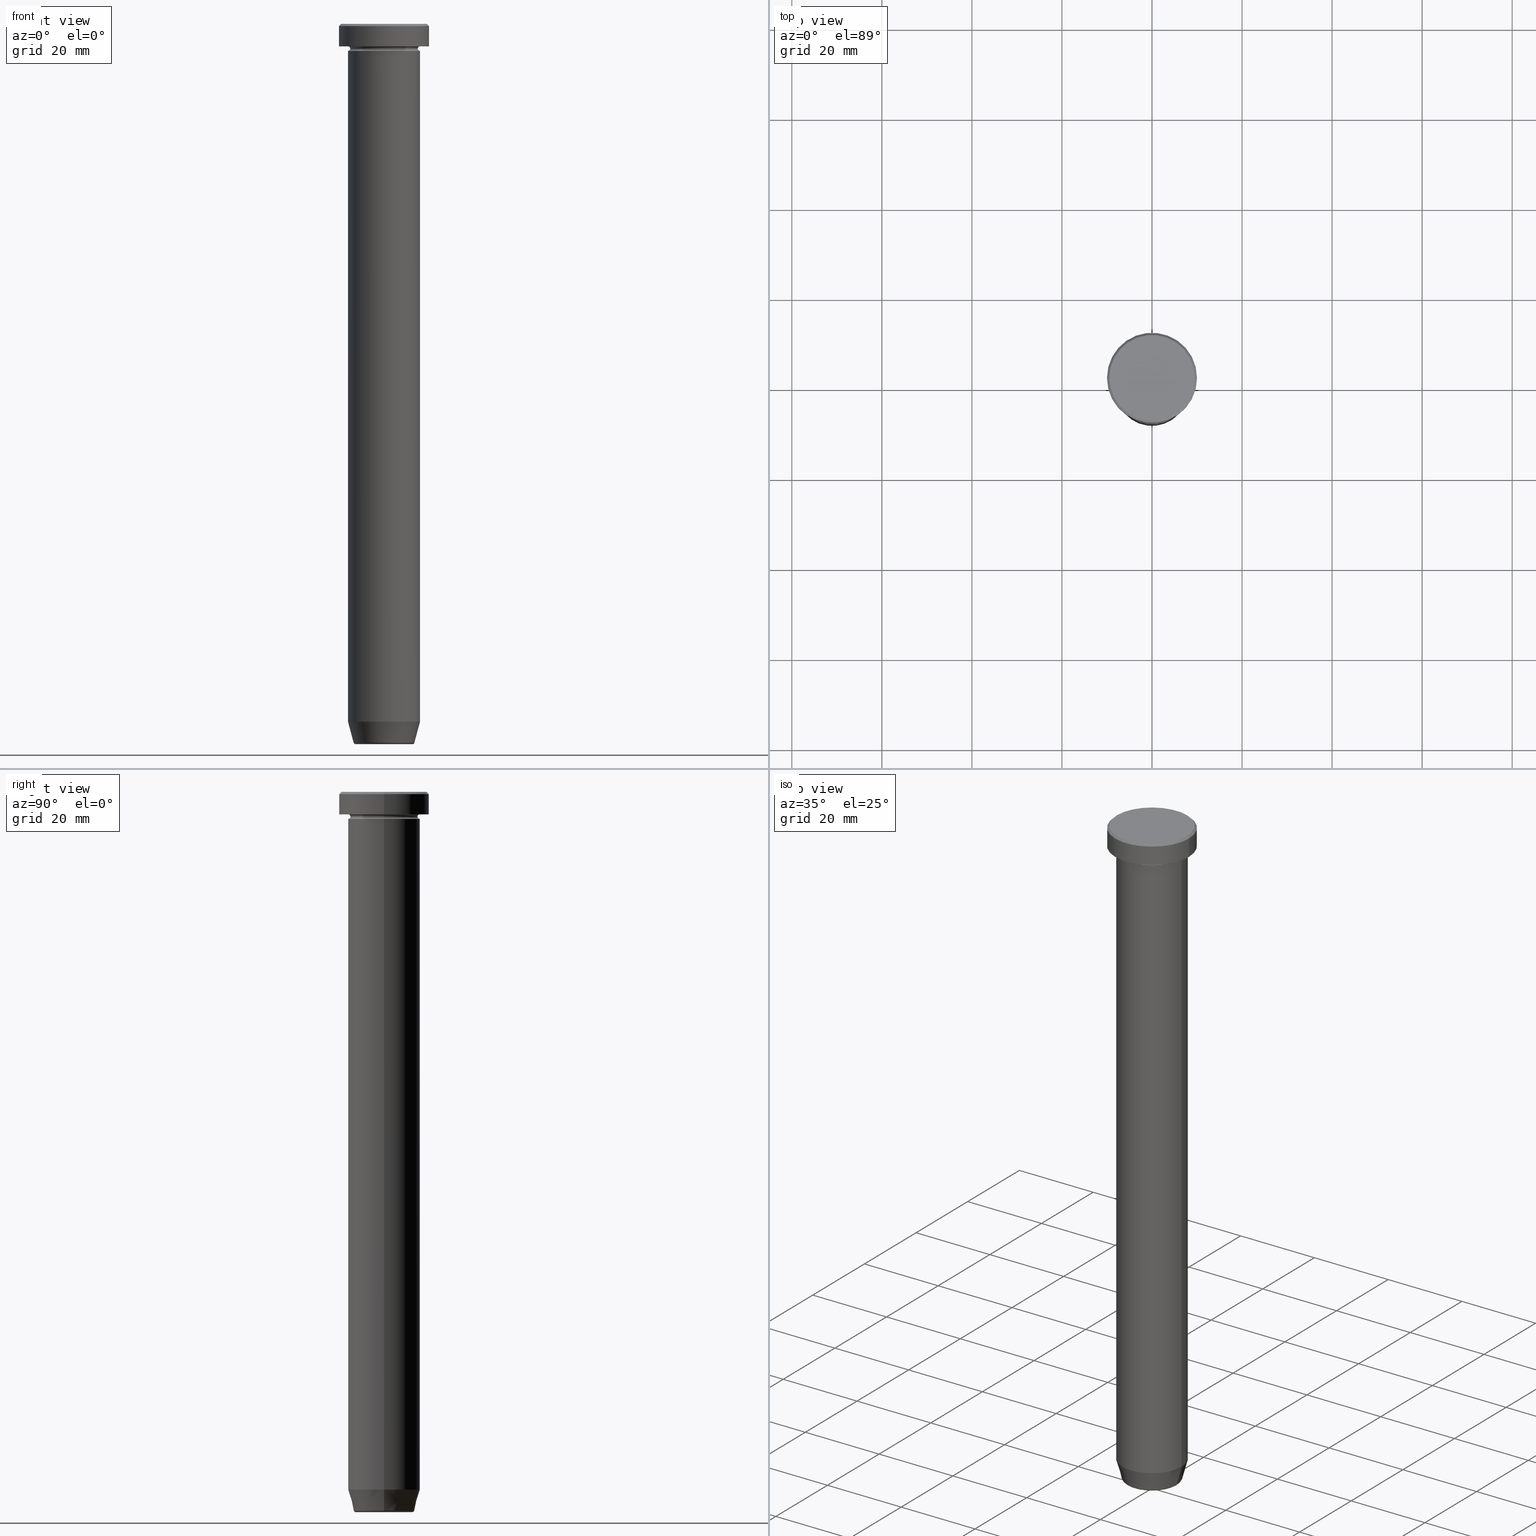
[diagram: canonical four-view strip — front | top / right | iso, engineering-drawing reading convention]
A machine part, canonical four-view strip (front | top / right | iso — engineering-drawing reading convention). The complete STEP part file that produces these views, byte-faithful:
ISO-10303-21;
HEADER;
FILE_DESCRIPTION (( 'STEP AP203' ),
    '1' );
FILE_NAME ('6c4e.STEP',
    '2024-01-02T22:04:36',
    ( '' ),
    ( '' ),
    'SwSTEP 2.0',
    'SolidWorks 2019',
    '' );
FILE_SCHEMA (( 'CONFIG_CONTROL_DESIGN' ));
ENDSEC;

DATA;
#1 = ORIENTED_EDGE ( 'NONE', *, *, #326, .T. ) ;
#2 = DIRECTION ( 'NONE',  ( 1.000000000000000000, 0.000000000000000000, 0.000000000000000000 ) ) ;
#3 = FACE_OUTER_BOUND ( 'NONE', #20, .T. ) ;
#4 = ORIENTED_EDGE ( 'NONE', *, *, #275, .F. ) ;
#5 = VECTOR ( 'NONE', #362, 1000.000000000000000 ) ;
#6 = DIRECTION ( 'NONE',  ( -0.000000000000000000, -0.000000000000000000, 1.000000000000000000 ) ) ;
#7 = AXIS2_PLACEMENT_3D ( 'NONE', #38, #594, #557 ) ;
#8 = ADVANCED_FACE ( 'NONE', ( #161 ), #121, .T. ) ;
#9 = EDGE_LOOP ( 'NONE', ( #352, #363 ) ) ;
#10 = ORIENTED_EDGE ( 'NONE', *, *, #111, .F. ) ;
#11 = DIRECTION ( 'NONE',  ( 1.000000000000000000, 0.000000000000000000, 0.000000000000000000 ) ) ;
#12 = EDGE_CURVE ( 'NONE', #385, #373, #389, .T. ) ;
#13 = DIRECTION ( 'NONE',  ( -1.000000000000000000, 0.000000000000000000, 0.000000000000000000 ) ) ;
#14 = AXIS2_PLACEMENT_3D ( 'NONE', #53, #429, #336 ) ;
#15 = AXIS2_PLACEMENT_3D ( 'NONE', #333, #295, #253 ) ;
#16 = DIRECTION ( 'NONE',  ( -0.000000000000000000, -0.000000000000000000, 1.000000000000000000 ) ) ;
#17 = ORIENTED_EDGE ( 'NONE', *, *, #464, .T. ) ;
#18 = EDGE_CURVE ( 'NONE', #200, #242, #520, .T. ) ;
#19 = CONICAL_SURFACE ( 'NONE', #349, 6.660254037844382857, 0.2617993877991499074 ) ;
#20 = EDGE_LOOP ( 'NONE', ( #374, #448 ) ) ;
#21 = VERTEX_POINT ( 'NONE', #589 ) ;
#22 = CARTESIAN_POINT ( 'NONE',  ( 8.000000000000000000, 9.797174393178825657E-16, -5.500000000000000000 ) ) ;
#23 = ORIENTED_EDGE ( 'NONE', *, *, #61, .T. ) ;
#24 = ORIENTED_EDGE ( 'NONE', *, *, #536, .T. ) ;
#25 = EDGE_LOOP ( 'NONE', ( #46, #538, #492, #403 ) ) ;
#26 = ADVANCED_FACE ( 'NONE', ( #39 ), #126, .F. ) ;
#27 = CARTESIAN_POINT ( 'NONE',  ( 8.000000000000000000, 0.000000000000000000, 0.000000000000000000 ) ) ;
#28 = COORDINATED_UNIVERSAL_TIME_OFFSET ( 1, 0, .AHEAD. ) ;
#29 = CIRCLE ( 'NONE', #558, 7.500000000000000000 ) ;
#30 = LOCAL_TIME ( 23, 4, 36.00000000000000000, #579 ) ;
#31 = FACE_OUTER_BOUND ( 'NONE', #280, .T. ) ;
#32 = PLANE ( 'NONE',  #400 ) ;
#33 = CC_DESIGN_PERSON_AND_ORGANIZATION_ASSIGNMENT ( #452, #214, ( #139 ) ) ;
#34 = DIRECTION ( 'NONE',  ( -1.000000000000000000, 1.224646799147353454E-16, 0.000000000000000000 ) ) ;
#35 = DIRECTION ( 'NONE',  ( 1.000000000000000000, 0.000000000000000000, 0.000000000000000000 ) ) ;
#36 = ADVANCED_FACE ( 'NONE', ( #552 ), #32, .T. ) ;
#37 = EDGE_LOOP ( 'NONE', ( #580, #565 ) ) ;
#38 = CARTESIAN_POINT ( 'NONE',  ( 0.000000000000000000, 0.000000000000000000, -5.000000000000000000 ) ) ;
#39 = FACE_OUTER_BOUND ( 'NONE', #223, .T. ) ;
#40 = ORIENTED_EDGE ( 'NONE', *, *, #142, .T. ) ;
#41 = AXIS2_PLACEMENT_3D ( 'NONE', #279, #324, #327 ) ;
#42 = EDGE_LOOP ( 'NONE', ( #459, #518, #1, #96 ) ) ;
#43 = AXIS2_PLACEMENT_3D ( 'NONE', #529, #312, #199 ) ;
#44 = EDGE_CURVE ( 'NONE', #21, #302, #428, .T. ) ;
#45 = DIRECTION ( 'NONE',  ( -0.2588190451025211836, 3.169619151431770488E-17, 0.9659258262890680902 ) ) ;
#46 = ORIENTED_EDGE ( 'NONE', *, *, #587, .T. ) ;
#47 = ORIENTED_EDGE ( 'NONE', *, *, #219, .F. ) ;
#48 = DIRECTION ( 'NONE',  ( -0.000000000000000000, -0.000000000000000000, 1.000000000000000000 ) ) ;
#49 = COORDINATED_UNIVERSAL_TIME_OFFSET ( 1, 0, .AHEAD. ) ;
#50 = CARTESIAN_POINT ( 'NONE',  ( 0.000000000000000000, 0.000000000000000000, -160.0000000000000000 ) ) ;
#51 = CARTESIAN_POINT ( 'NONE',  ( 0.000000000000000000, 0.000000000000000000, -0.4999999999999987232 ) ) ;
#52 = ORIENTED_EDGE ( 'NONE', *, *, #305, .T. ) ;
#53 = CARTESIAN_POINT ( 'NONE',  ( 0.000000000000000000, 0.000000000000000000, -5.500000000000000000 ) ) ;
#54 = DATE_TIME_ROLE ( 'creation_date' ) ;
#55 = AXIS2_PLACEMENT_3D ( 'NONE', #588, #175, #361 ) ;
#56 = LINE ( 'NONE', #78, #418 ) ;
#57 = CIRCLE ( 'NONE', #319, 6.276590543854906556 ) ;
#58 = CARTESIAN_POINT ( 'NONE',  ( -9.500000000000005329, 0.000000000000000000, 0.000000000000000000 ) ) ;
#59 = APPLICATION_PROTOCOL_DEFINITION ( 'international standard', 'config_control_design', 1994, #171 ) ;
#60 = DIRECTION ( 'NONE',  ( -0.000000000000000000, -0.000000000000000000, 1.000000000000000000 ) ) ;
#61 = EDGE_CURVE ( 'NONE', #116, #458, #216, .T. ) ;
#62 = CARTESIAN_POINT ( 'NONE',  ( 0.000000000000000000, 0.000000000000000000, 0.000000000000000000 ) ) ;
#63 = DIRECTION ( 'NONE',  ( -0.000000000000000000, -0.000000000000000000, 1.000000000000000000 ) ) ;
#64 = DIRECTION ( 'NONE',  ( -0.000000000000000000, -0.000000000000000000, 1.000000000000000000 ) ) ;
#65 = LINE ( 'NONE', #399, #369 ) ;
#66 = DIRECTION ( 'NONE',  ( 1.000000000000000000, 0.000000000000000000, 0.000000000000000000 ) ) ;
#67 = CONICAL_SURFACE ( 'NONE', #406, 6.660254037844382857, 0.2617993877991499074 ) ;
#68 = CIRCLE ( 'NONE', #203, 8.000000000000000000 ) ;
#69 = VERTEX_POINT ( 'NONE', #414 ) ;
#70 = FACE_OUTER_BOUND ( 'NONE', #597, .T. ) ;
#71 = EDGE_CURVE ( 'NONE', #69, #254, #29, .T. ) ;
#72 = CARTESIAN_POINT ( 'NONE',  ( 0.000000000000000000, 0.000000000000000000, 0.000000000000000000 ) ) ;
#73 = DIRECTION ( 'NONE',  ( -0.000000000000000000, -0.000000000000000000, 1.000000000000000000 ) ) ;
#74 = DIRECTION ( 'NONE',  ( -0.000000000000000000, -0.000000000000000000, 1.000000000000000000 ) ) ;
#75 = PLANE ( 'NONE',  #430 ) ;
#76 = AXIS2_PLACEMENT_3D ( 'NONE', #245, #292, #527 ) ;
#77 = DIRECTION ( 'NONE',  ( 1.000000000000000000, 0.000000000000000000, 0.000000000000000000 ) ) ;
#78 = CARTESIAN_POINT ( 'NONE',  ( -9.500000000000005329, 0.000000000000000000, 0.000000000000000000 ) ) ;
#79 = ORIENTED_EDGE ( 'NONE', *, *, #305, .F. ) ;
#80 = PERSON ( 'NEUR�EN�', 'NEUR�EN�', 'NEUR�EN�', ('NEUR�EN�'), ('NEUR�EN�'), ('NEUR�EN�') ) ;
#81 = ORIENTED_EDGE ( 'NONE', *, *, #12, .T. ) ;
#82 = CARTESIAN_POINT ( 'NONE',  ( -6.276590543854906556, 7.686606519090456901E-16, -159.5000000000000000 ) ) ;
#83 = VECTOR ( 'NONE', #563, 1000.000000000000000 ) ;
#84 = AXIS2_PLACEMENT_3D ( 'NONE', #100, #364, #135 ) ;
#85 =( NAMED_UNIT ( * ) SI_UNIT ( $, .STERADIAN. ) SOLID_ANGLE_UNIT ( ) );
#86 = EDGE_LOOP ( 'NONE', ( #273, #504, #470, #445 ) ) ;
#87 = CARTESIAN_POINT ( 'NONE',  ( -8.000000000000000000, 9.797174393178825657E-16, -6.000000000000000000 ) ) ;
#88 = DIRECTION ( 'NONE',  ( 1.000000000000000000, 0.000000000000000000, 0.000000000000000000 ) ) ;
#89 = ORIENTED_EDGE ( 'NONE', *, *, #599, .F. ) ;
#90 = FACE_OUTER_BOUND ( 'NONE', #397, .T. ) ;
#91 = ORIENTED_EDGE ( 'NONE', *, *, #191, .F. ) ;
#92 = TOROIDAL_SURFACE ( 'NONE', #331, 8.000000000000000000, 0.5000000000000000000 ) ;
#93 = AXIS2_PLACEMENT_3D ( 'NONE', #248, #284, #149 ) ;
#94 = FACE_OUTER_BOUND ( 'NONE', #25, .T. ) ;
#95 = APPROVAL_DATE_TIME ( #410, #117 ) ;
#96 = ORIENTED_EDGE ( 'NONE', *, *, #480, .F. ) ;
#97 = ORIENTED_EDGE ( 'NONE', *, *, #191, .T. ) ;
#98 = ADVANCED_FACE ( 'NONE', ( #472 ), #92, .F. ) ;
#99 = CARTESIAN_POINT ( 'NONE',  ( 0.000000000000000000, 0.000000000000000000, -160.0000000000000000 ) ) ;
#100 = CARTESIAN_POINT ( 'NONE',  ( 0.000000000000000000, 0.000000000000000000, -5.000000000000000000 ) ) ;
#101 = CARTESIAN_POINT ( 'NONE',  ( 0.000000000000000000, 0.000000000000000000, 0.000000000000000000 ) ) ;
#102 = CARTESIAN_POINT ( 'NONE',  ( 8.000000000000000000, 0.000000000000000000, -155.0000000000000000 ) ) ;
#103 = DIRECTION ( 'NONE',  ( 1.000000000000000000, 0.000000000000000000, 0.000000000000000000 ) ) ;
#104 = DIRECTION ( 'NONE',  ( -0.000000000000000000, -0.000000000000000000, 1.000000000000000000 ) ) ;
#105 = MECHANICAL_CONTEXT ( 'NONE', #123, 'mechanical' ) ;
#106 = ORIENTED_EDGE ( 'NONE', *, *, #347, .T. ) ;
#107 = DIRECTION ( 'NONE',  ( 0.000000000000000000, -1.000000000000000000, 0.000000000000000000 ) ) ;
#108 = AXIS2_PLACEMENT_3D ( 'NONE', #535, #16, #301 ) ;
#109 = CARTESIAN_POINT ( 'NONE',  ( -8.000000000000000000, 9.797174393178825657E-16, 0.000000000000000000 ) ) ;
#110 = CIRCLE ( 'NONE', #490, 0.5000000000000004441 ) ;
#111 = EDGE_CURVE ( 'NONE', #69, #332, #443, .T. ) ;
#112 = PRODUCT_DEFINITION_SHAPE ( 'NONE', 'NONE',  #297 ) ;
#113 = ORIENTED_EDGE ( 'NONE', *, *, #219, .T. ) ;
#114 = CARTESIAN_POINT ( 'NONE',  ( 0.000000000000000000, 0.000000000000000000, -5.500000000000000000 ) ) ;
#115 = CARTESIAN_POINT ( 'NONE',  ( -8.000000000000000000, 0.000000000000000000, -4.999999999999999112 ) ) ;
#116 = VERTEX_POINT ( 'NONE', #392 ) ;
#117 = APPROVAL ( #485, 'NEUR�EN�' ) ;
#118 = CARTESIAN_POINT ( 'NONE',  ( 0.000000000000000000, 0.000000000000000000, -5.500000000000000000 ) ) ;
#119 = CIRCLE ( 'NONE', #309, 10.00000000000000000 ) ;
#120 = LOCAL_TIME ( 23, 4, 36.00000000000000000, #496 ) ;
#121 = CYLINDRICAL_SURFACE ( 'NONE', #489, 10.00000000000000000 ) ;
#122 = ADVANCED_FACE ( 'NONE', ( #208 ), #450, .T. ) ;
#123 = APPLICATION_CONTEXT ( 'configuration controlled 3d designs of mechanical parts and assemblies' ) ;
#124 = DIRECTION ( 'NONE',  ( 1.000000000000000000, 0.000000000000000000, 0.000000000000000000 ) ) ;
#125 = APPROVAL_ROLE ( '' ) ;
#126 = TOROIDAL_SURFACE ( 'NONE', #473, 8.000000000000000000, 0.5000000000000000000 ) ;
#127 = ADVANCED_FACE ( 'NONE', ( #263 ), #453, .T. ) ;
#128 = APPROVAL_PERSON_ORGANIZATION ( #426, #117, #270 ) ;
#129 = CARTESIAN_POINT ( 'NONE',  ( 0.000000000000000000, 0.000000000000000000, -5.500000000000000000 ) ) ;
#130 = APPROVAL_STATUS ( 'not_yet_approved' ) ;
#131 = FACE_OUTER_BOUND ( 'NONE', #37, .T. ) ;
#132 = FACE_OUTER_BOUND ( 'NONE', #42, .T. ) ;
#133 = ORIENTED_EDGE ( 'NONE', *, *, #542, .F. ) ;
#134 = EDGE_CURVE ( 'NONE', #21, #138, #282, .T. ) ;
#135 = DIRECTION ( 'NONE',  ( -1.000000000000000000, 0.000000000000000000, 0.000000000000000000 ) ) ;
#136 = DIRECTION ( 'NONE',  ( 0.000000000000000000, 0.000000000000000000, -1.000000000000000000 ) ) ;
#137 = CONICAL_SURFACE ( 'NONE', #202, 9.500000000000005329, 0.7853981633974447263 ) ;
#138 = VERTEX_POINT ( 'NONE', #289 ) ;
#139 = SECURITY_CLASSIFICATION ( '', '', #264 ) ;
#140 = DIRECTION ( 'NONE',  ( -0.000000000000000000, -0.000000000000000000, 1.000000000000000000 ) ) ;
#141 = ADVANCED_FACE ( 'NONE', ( #132 ), #137, .T. ) ;
#142 = EDGE_CURVE ( 'NONE', #498, #422, #509, .T. ) ;
#143 = CYLINDRICAL_SURFACE ( 'NONE', #108, 10.00000000000000000 ) ;
#144 = ORIENTED_EDGE ( 'NONE', *, *, #365, .T. ) ;
#145 = CARTESIAN_POINT ( 'NONE',  ( -10.00000000000000000, 1.224646799147353256E-15, 0.000000000000000000 ) ) ;
#146 = ADVANCED_FACE ( 'NONE', ( #239 ), #19, .T. ) ;
#147 = CIRCLE ( 'NONE', #367, 8.000000000000000000 ) ;
#148 = CC_DESIGN_APPROVAL ( #154, ( #173 ) ) ;
#149 = DIRECTION ( 'NONE',  ( -1.000000000000000000, 0.000000000000000000, 0.000000000000000000 ) ) ;
#150 = CARTESIAN_POINT ( 'NONE',  ( 0.000000000000000000, 1.347111479062088523E-14, -160.0000000000000000 ) ) ;
#151 = CARTESIAN_POINT ( 'NONE',  ( 6.276590543854906556, 0.000000000000000000, -160.0000000000000000 ) ) ;
#152 = CARTESIAN_POINT ( 'NONE',  ( 0.000000000000000000, 0.000000000000000000, -6.000000000000000000 ) ) ;
#153 = CALENDAR_DATE ( 2024, 2, 1 ) ;
#154 = APPROVAL ( #130, 'NEUR�EN�' ) ;
#155 = ORIENTED_EDGE ( 'NONE', *, *, #536, .F. ) ;
#156 = ADVANCED_FACE ( 'NONE', ( #31 ), #172, .T. ) ;
#157 = CIRCLE ( 'NONE', #390, 7.500000000000000000 ) ;
#158 = EDGE_LOOP ( 'NONE', ( #97, #561, #476, #345 ) ) ;
#159 = DIRECTION ( 'NONE',  ( -0.000000000000000000, -0.000000000000000000, 1.000000000000000000 ) ) ;
#160 = DIRECTION ( 'NONE',  ( -0.000000000000000000, -0.000000000000000000, 1.000000000000000000 ) ) ;
#161 = FACE_OUTER_BOUND ( 'NONE', #86, .T. ) ;
#162 = VECTOR ( 'NONE', #505, 1000.000000000000114 ) ;
#163 = AXIS2_PLACEMENT_3D ( 'NONE', #101, #48, #291 ) ;
#164 = MANIFOLD_SOLID_BREP ( 'Zkosen�1', #237 ) ;
#165 = DATE_TIME_ROLE ( 'classification_date' ) ;
#166 = ORIENTED_EDGE ( 'NONE', *, *, #417, .F. ) ;
#167 = CALENDAR_DATE ( 2024, 2, 1 ) ;
#168 = EDGE_CURVE ( 'NONE', #534, #138, #119, .T. ) ;
#169 = ORIENTED_EDGE ( 'NONE', *, *, #313, .F. ) ;
#170 = EDGE_LOOP ( 'NONE', ( #299, #314 ) ) ;
#171 = APPLICATION_CONTEXT ( 'configuration controlled 3d designs of mechanical parts and assemblies' ) ;
#172 = TOROIDAL_SURFACE ( 'NONE', #368, 6.276590543854906556, 0.5000000000000000000 ) ;
#173 = PRODUCT_DEFINITION_FORMATION_WITH_SPECIFIED_SOURCE ( 'LIBOVOLN�', '', #556, .NOT_KNOWN. ) ;
#174 = VERTEX_POINT ( 'NONE', #87 ) ;
#175 = DIRECTION ( 'NONE',  ( -0.000000000000000000, -0.000000000000000000, 1.000000000000000000 ) ) ;
#176 = PERSON_AND_ORGANIZATION_ROLE ( 'creator' ) ;
#177 = DIRECTION ( 'NONE',  ( 1.000000000000000000, 0.000000000000000000, 0.000000000000000000 ) ) ;
#178 = CARTESIAN_POINT ( 'NONE',  ( 9.500000000000005329, 1.163414459189986274E-15, 0.000000000000000000 ) ) ;
#179 = DIRECTION ( 'NONE',  ( -0.000000000000000000, -0.000000000000000000, 1.000000000000000000 ) ) ;
#180 = EDGE_LOOP ( 'NONE', ( #438, #113 ) ) ;
#181 = DIRECTION ( 'NONE',  ( -1.000000000000000000, 0.000000000000000000, -0.000000000000000000 ) ) ;
#182 = AXIS2_PLACEMENT_3D ( 'NONE', #495, #74, #371 ) ;
#183 = FACE_OUTER_BOUND ( 'NONE', #294, .T. ) ;
#184 = CIRCLE ( 'NONE', #530, 6.759553456999436882 ) ;
#185 = CIRCLE ( 'NONE', #163, 9.500000000000005329 ) ;
#186 = CARTESIAN_POINT ( 'NONE',  ( 10.00000000000000000, 0.000000000000000000, 0.000000000000000000 ) ) ;
#187 = EDGE_LOOP ( 'NONE', ( #329, #431, #17, #47 ) ) ;
#188 = ORIENTED_EDGE ( 'NONE', *, *, #168, .F. ) ;
#189 = DIRECTION ( 'NONE',  ( -1.000000000000000000, 1.224646799147353454E-16, 0.000000000000000000 ) ) ;
#190 = ADVANCED_FACE ( 'NONE', ( #183 ), #143, .T. ) ;
#191 = EDGE_CURVE ( 'NONE', #317, #341, #147, .T. ) ;
#192 = DIRECTION ( 'NONE',  ( 1.000000000000000000, 0.000000000000000000, 0.000000000000000000 ) ) ;
#193 = PLANE ( 'NONE',  #457 ) ;
#194 = CIRCLE ( 'NONE', #357, 8.000000000000000000 ) ;
#195 = CC_DESIGN_APPROVAL ( #449, ( #139 ) ) ;
#196 = DIRECTION ( 'NONE',  ( 1.000000000000000000, 0.000000000000000000, 0.000000000000000000 ) ) ;
#197 = FACE_OUTER_BOUND ( 'NONE', #432, .T. ) ;
#198 = EDGE_CURVE ( 'NONE', #341, #458, #204, .T. ) ;
#199 = DIRECTION ( 'NONE',  ( -1.000000000000000000, 0.000000000000000000, -0.000000000000000000 ) ) ;
#200 = VERTEX_POINT ( 'NONE', #393 ) ;
#201 = CLOSED_SHELL ( 'NONE', ( #593, #146, #122, #578, #127, #335, #405, #156 ) ) ;
#202 = AXIS2_PLACEMENT_3D ( 'NONE', #233, #506, #469 ) ;
#203 = AXIS2_PLACEMENT_3D ( 'NONE', #573, #567, #66 ) ;
#204 = LINE ( 'NONE', #533, #83 ) ;
#205 = DIRECTION ( 'NONE',  ( 0.000000000000000000, 0.000000000000000000, 1.000000000000000000 ) ) ;
#206 = EDGE_LOOP ( 'NONE', ( #81, #24, #91, #387 ) ) ;
#207 = UNCERTAINTY_MEASURE_WITH_UNIT (LENGTH_MEASURE( 1.000000000000000082E-05 ), #265, 'distance_accuracy_value', 'NONE');
#208 = FACE_OUTER_BOUND ( 'NONE', #158, .T. ) ;
#209 = FACE_OUTER_BOUND ( 'NONE', #420, .T. ) ;
#210 = EDGE_CURVE ( 'NONE', #254, #69, #157, .T. ) ;
#211 = ORIENTED_EDGE ( 'NONE', *, *, #475, .T. ) ;
#212 = CARTESIAN_POINT ( 'NONE',  ( 0.000000000000000000, 0.000000000000000000, 0.000000000000000000 ) ) ;
#213 = APPROVAL_DATE_TIME ( #266, #154 ) ;
#214 = PERSON_AND_ORGANIZATION_ROLE ( 'classification_officer' ) ;
#215 = DIRECTION ( 'NONE',  ( 0.000000000000000000, -0.000000000000000000, 1.000000000000000000 ) ) ;
#216 = CIRCLE ( 'NONE', #481, 8.000000000000000000 ) ;
#217 = CIRCLE ( 'NONE', #84, 8.000000000000000000 ) ;
#218 = CARTESIAN_POINT ( 'NONE',  ( 0.000000000000000000, 0.000000000000000000, 0.000000000000000000 ) ) ;
#219 = EDGE_CURVE ( 'NONE', #564, #596, #454, .T. ) ;
#220 = DIRECTION ( 'NONE',  ( 0.000000000000000000, 0.000000000000000000, -1.000000000000000000 ) ) ;
#221 = CC_DESIGN_PERSON_AND_ORGANIZATION_ASSIGNMENT ( #491, #247, ( #556 ) ) ;
#222 = EDGE_LOOP ( 'NONE', ( #166, #40, #394, #79 ) ) ;
#223 = EDGE_LOOP ( 'NONE', ( #283, #574, #232, #528 ) ) ;
#224 = CIRCLE ( 'NONE', #55, 8.000000000000000000 ) ;
#225 = CIRCLE ( 'NONE', #455, 10.00000000000000000 ) ;
#226 = DIRECTION ( 'NONE',  ( -0.000000000000000000, -0.000000000000000000, 1.000000000000000000 ) ) ;
#227 = ORIENTED_EDGE ( 'NONE', *, *, #313, .T. ) ;
#228 = ADVANCED_FACE ( 'NONE', ( #447 ), #285, .F. ) ;
#229 = DIRECTION ( 'NONE',  ( 1.000000000000000000, 0.000000000000000000, 0.000000000000000000 ) ) ;
#230 = CARTESIAN_POINT ( 'NONE',  ( 0.000000000000000000, 0.000000000000000000, -30.00000000000000000 ) ) ;
#231 = EDGE_LOOP ( 'NONE', ( #155, #461, #246, #290 ) ) ;
#232 = ORIENTED_EDGE ( 'NONE', *, *, #380, .F. ) ;
#233 = CARTESIAN_POINT ( 'NONE',  ( 0.000000000000000000, 0.000000000000000000, 0.000000000000000000 ) ) ;
#234 = DIRECTION ( 'NONE',  ( -1.000000000000000000, 0.000000000000000000, -0.000000000000000000 ) ) ;
#235 = DIRECTION ( 'NONE',  ( 0.000000000000000000, 0.000000000000000000, -1.000000000000000000 ) ) ;
#236 = CC_DESIGN_PERSON_AND_ORGANIZATION_ASSIGNMENT ( #503, #575, ( #173 ) ) ;
#237 = CLOSED_SHELL ( 'NONE', ( #526, #26, #98, #493, #8, #36, #320, #190, #437, #510, #249, #228, #141 ) ) ;
#238 = AXIS2_PLACEMENT_3D ( 'NONE', #218, #316, #77 ) ;
#239 = FACE_OUTER_BOUND ( 'NONE', #206, .T. ) ;
#240 = DIRECTION ( 'NONE',  ( -0.000000000000000000, -0.000000000000000000, 1.000000000000000000 ) ) ;
#241 = CIRCLE ( 'NONE', #474, 0.5000000000000004441 ) ;
#242 = VERTEX_POINT ( 'NONE', #151 ) ;
#243 = DESIGN_CONTEXT ( 'detailed design', #171, 'design' ) ;
#244 = FACE_OUTER_BOUND ( 'NONE', #222, .T. ) ;
#245 = CARTESIAN_POINT ( 'NONE',  ( 6.276590543854906556, 0.000000000000000000, -159.5000000000000000 ) ) ;
#246 = ORIENTED_EDGE ( 'NONE', *, *, #415, .T. ) ;
#247 = PERSON_AND_ORGANIZATION_ROLE ( 'design_owner' ) ;
#248 = CARTESIAN_POINT ( 'NONE',  ( 0.000000000000000000, 0.000000000000000000, 0.000000000000000000 ) ) ;
#249 = ADVANCED_FACE ( 'NONE', ( #197 ), #267, .F. ) ;
#250 = VERTEX_POINT ( 'NONE', #58 ) ;
#251 = AXIS2_PLACEMENT_3D ( 'NONE', #436, #60, #103 ) ;
#252 = LOCAL_TIME ( 23, 4, 36.00000000000000000, #28 ) ;
#253 = DIRECTION ( 'NONE',  ( 0.000000000000000000, 0.000000000000000000, -1.000000000000000000 ) ) ;
#254 = VERTEX_POINT ( 'NONE', #435 ) ;
#255 = CARTESIAN_POINT ( 'NONE',  ( 8.000000000000000000, 9.797174393178825657E-16, -4.999999999999999112 ) ) ;
#256 = CARTESIAN_POINT ( 'NONE',  ( 8.000000000000000000, 0.000000000000000000, -5.500000000000000000 ) ) ;
#257 = AXIS2_PLACEMENT_3D ( 'NONE', #559, #296, #524 ) ;
#258 = EDGE_CURVE ( 'NONE', #458, #116, #568, .T. ) ;
#259 = CIRCLE ( 'NONE', #482, 0.4999999999999995559 ) ;
#260 = DIRECTION ( 'NONE',  ( 1.000000000000000000, 0.000000000000000000, 0.000000000000000000 ) ) ;
#261 = PLANE ( 'NONE',  #43 ) ;
#262 = DIRECTION ( 'NONE',  ( -0.000000000000000000, -0.000000000000000000, 1.000000000000000000 ) ) ;
#263 = FACE_OUTER_BOUND ( 'NONE', #334, .T. ) ;
#264 = SECURITY_CLASSIFICATION_LEVEL ( 'unclassified' ) ;
#265 =( LENGTH_UNIT ( ) NAMED_UNIT ( * ) SI_UNIT ( .MILLI., .METRE. ) );
#266 = DATE_AND_TIME ( #398, #521 ) ;
#267 = TOROIDAL_SURFACE ( 'NONE', #251, 8.000000000000000000, 0.5000000000000000000 ) ;
#268 = CARTESIAN_POINT ( 'NONE',  ( 0.000000000000000000, 10.00000000000000000, -5.000000000000000000 ) ) ;
#269 = AXIS2_PLACEMENT_3D ( 'NONE', #423, #376, #2 ) ;
#270 = APPROVAL_ROLE ( '' ) ;
#271 = DIRECTION ( 'NONE',  ( 1.000000000000000000, 0.000000000000000000, 0.000000000000000000 ) ) ;
#272 = ORIENTED_EDGE ( 'NONE', *, *, #12, .F. ) ;
#273 = ORIENTED_EDGE ( 'NONE', *, *, #44, .T. ) ;
#274 = APPROVAL_DATE_TIME ( #356, #449 ) ;
#275 = EDGE_CURVE ( 'NONE', #382, #250, #339, .T. ) ;
#276 = CIRCLE ( 'NONE', #7, 10.00000000000000000 ) ;
#277 = DIRECTION ( 'NONE',  ( 1.224646799147353207E-16, 1.000000000000000000, 0.000000000000000000 ) ) ;
#278 = DIRECTION ( 'NONE',  ( -0.000000000000000000, -0.000000000000000000, 1.000000000000000000 ) ) ;
#279 = CARTESIAN_POINT ( 'NONE',  ( 0.000000000000000000, 0.000000000000000000, -160.0000000000000000 ) ) ;
#280 = EDGE_LOOP ( 'NONE', ( #344, #545, #227, #89 ) ) ;
#281 = CARTESIAN_POINT ( 'NONE',  ( 6.759553456999436882, 0.000000000000000000, -159.6294095225512422 ) ) ;
#282 = LINE ( 'NONE', #186, #5 ) ;
#283 = ORIENTED_EDGE ( 'NONE', *, *, #210, .T. ) ;
#284 = DIRECTION ( 'NONE',  ( 0.000000000000000000, 0.000000000000000000, -1.000000000000000000 ) ) ;
#285 = TOROIDAL_SURFACE ( 'NONE', #14, 8.000000000000000000, 0.5000000000000000000 ) ;
#286 = DIRECTION ( 'NONE',  ( 0.000000000000000000, 0.000000000000000000, -1.000000000000000000 ) ) ;
#287 = CC_DESIGN_APPROVAL ( #117, ( #297 ) ) ;
#288 = PERSON_AND_ORGANIZATION ( #80, #511 ) ;
#289 = CARTESIAN_POINT ( 'NONE',  ( 10.00000000000000000, 0.000000000000000000, -0.4999999999999987232 ) ) ;
#290 = ORIENTED_EDGE ( 'NONE', *, *, #475, .F. ) ;
#291 = DIRECTION ( 'NONE',  ( 1.000000000000000000, 0.000000000000000000, 0.000000000000000000 ) ) ;
#292 = DIRECTION ( 'NONE',  ( 0.000000000000000000, -1.000000000000000000, 0.000000000000000000 ) ) ;
#293 = DIRECTION ( 'NONE',  ( -0.000000000000000000, -0.000000000000000000, 1.000000000000000000 ) ) ;
#294 = EDGE_LOOP ( 'NONE', ( #391, #383, #342, #582 ) ) ;
#295 = DIRECTION ( 'NONE',  ( -0.000000000000000000, -1.000000000000000000, -0.000000000000000000 ) ) ;
#296 = DIRECTION ( 'NONE',  ( 0.000000000000000000, -0.000000000000000000, 1.000000000000000000 ) ) ;
#297 = PRODUCT_DEFINITION ( 'NEZN�M�', '', #173, #243 ) ;
#298 = AXIS2_PLACEMENT_3D ( 'NONE', #507, #240, #271 ) ;
#299 = ORIENTED_EDGE ( 'NONE', *, *, #44, .F. ) ;
#300 = CIRCLE ( 'NONE', #15, 0.5000000000000004441 ) ;
#301 = DIRECTION ( 'NONE',  ( 1.000000000000000000, 0.000000000000000000, 0.000000000000000000 ) ) ;
#302 = VERTEX_POINT ( 'NONE', #446 ) ;
#303 = DIRECTION ( 'NONE',  ( 0.000000000000000000, 0.000000000000000000, -1.000000000000000000 ) ) ;
#304 = CARTESIAN_POINT ( 'NONE',  ( 0.000000000000000000, 0.000000000000000000, -159.6294095225512422 ) ) ;
#305 = EDGE_CURVE ( 'NONE', #174, #332, #194, .T. ) ;
#306 = ORIENTED_EDGE ( 'NONE', *, *, #343, .T. ) ;
#307 = DIRECTION ( 'NONE',  ( 1.000000000000000000, 0.000000000000000000, 0.000000000000000000 ) ) ;
#308 = DIRECTION ( 'NONE',  ( -0.000000000000000000, -0.000000000000000000, 1.000000000000000000 ) ) ;
#309 = AXIS2_PLACEMENT_3D ( 'NONE', #413, #136, #512 ) ;
#310 = APPROVAL_PERSON_ORGANIZATION ( #404, #154, #583 ) ;
#311 = PERSON_AND_ORGANIZATION_ROLE ( 'design_supplier' ) ;
#312 = DIRECTION ( 'NONE',  ( 0.000000000000000000, 0.000000000000000000, -1.000000000000000000 ) ) ;
#313 = EDGE_CURVE ( 'NONE', #242, #385, #318, .T. ) ;
#314 = ORIENTED_EDGE ( 'NONE', *, *, #517, .F. ) ;
#315 = DIRECTION ( 'NONE',  ( -1.000000000000000000, -1.224646799147353454E-16, 0.000000000000000000 ) ) ;
#316 = DIRECTION ( 'NONE',  ( -0.000000000000000000, -0.000000000000000000, 1.000000000000000000 ) ) ;
#317 = VERTEX_POINT ( 'NONE', #102 ) ;
#318 = CIRCLE ( 'NONE', #76, 0.5000000000000004441 ) ;
#319 = AXIS2_PLACEMENT_3D ( 'NONE', #99, #235, #196 ) ;
#320 = ADVANCED_FACE ( 'NONE', ( #131 ), #466, .T. ) ;
#321 = LINE ( 'NONE', #178, #162 ) ;
#322 = DIRECTION ( 'NONE',  ( -0.000000000000000000, -0.000000000000000000, 1.000000000000000000 ) ) ;
#323 = CARTESIAN_POINT ( 'NONE',  ( 9.500000000000005329, 1.194030629168669864E-15, 0.000000000000000000 ) ) ;
#324 = DIRECTION ( 'NONE',  ( 0.000000000000000000, 0.000000000000000000, -1.000000000000000000 ) ) ;
#325 = CYLINDRICAL_SURFACE ( 'NONE', #358, 8.000000000000000000 ) ;
#326 = EDGE_CURVE ( 'NONE', #250, #534, #56, .T. ) ;
#327 = DIRECTION ( 'NONE',  ( 1.000000000000000000, 0.000000000000000000, 0.000000000000000000 ) ) ;
#328 = CARTESIAN_POINT ( 'NONE',  ( 0.000000000000000000, 0.000000000000000000, -30.00000000000000000 ) ) ;
#329 = ORIENTED_EDGE ( 'NONE', *, *, #425, .F. ) ;
#330 = DIRECTION ( 'NONE',  ( -0.000000000000000000, -0.000000000000000000, 1.000000000000000000 ) ) ;
#331 = AXIS2_PLACEMENT_3D ( 'NONE', #114, #64, #395 ) ;
#332 = VERTEX_POINT ( 'NONE', #434 ) ;
#333 = CARTESIAN_POINT ( 'NONE',  ( -8.000000000000000000, 0.000000000000000000, -5.500000000000000000 ) ) ;
#334 = EDGE_LOOP ( 'NONE', ( #355, #211, #306, #513 ) ) ;
#335 = ADVANCED_FACE ( 'NONE', ( #386 ), #67, .T. ) ;
#336 = DIRECTION ( 'NONE',  ( -1.000000000000000000, 0.000000000000000000, 0.000000000000000000 ) ) ;
#337 = ORIENTED_EDGE ( 'NONE', *, *, #18, .F. ) ;
#338 = CARTESIAN_POINT ( 'NONE',  ( 0.000000000000000000, 0.000000000000000000, -30.00000000000000000 ) ) ;
#339 = CIRCLE ( 'NONE', #463, 9.500000000000005329 ) ;
#340 = CONICAL_SURFACE ( 'NONE', #93, 9.500000000000005329, 0.7853981633974447263 ) ;
#341 = VERTEX_POINT ( 'NONE', #546 ) ;
#342 = ORIENTED_EDGE ( 'NONE', *, *, #134, .T. ) ;
#343 = EDGE_CURVE ( 'NONE', #317, #116, #549, .T. ) ;
#344 = ORIENTED_EDGE ( 'NONE', *, *, #365, .F. ) ;
#345 = ORIENTED_EDGE ( 'NONE', *, *, #343, .F. ) ;
#346 = LINE ( 'NONE', #109, #551 ) ;
#347 = EDGE_CURVE ( 'NONE', #332, #174, #224, .T. ) ;
#348 = DIRECTION ( 'NONE',  ( 1.000000000000000000, 0.000000000000000000, 0.000000000000000000 ) ) ;
#349 = AXIS2_PLACEMENT_3D ( 'NONE', #50, #278, #465 ) ;
#350 = COORDINATED_UNIVERSAL_TIME_OFFSET ( 1, 0, .AHEAD. ) ;
#351 = TOROIDAL_SURFACE ( 'NONE', #408, 6.276590543854906556, 0.5000000000000000000 ) ;
#352 = ORIENTED_EDGE ( 'NONE', *, *, #587, .F. ) ;
#353 = PERSON_AND_ORGANIZATION ( #80, #511 ) ;
#354 = EDGE_CURVE ( 'NONE', #382, #138, #321, .T. ) ;
#355 = ORIENTED_EDGE ( 'NONE', *, *, #198, .F. ) ;
#356 = DATE_AND_TIME ( #167, #120 ) ;
#357 = AXIS2_PLACEMENT_3D ( 'NONE', #152, #6, #229 ) ;
#358 = AXIS2_PLACEMENT_3D ( 'NONE', #523, #514, #88 ) ;
#359 = CARTESIAN_POINT ( 'NONE',  ( 0.000000000000000000, 8.000000000000000000, -30.00000000000000000 ) ) ;
#360 = ORIENTED_EDGE ( 'NONE', *, *, #354, .T. ) ;
#361 = DIRECTION ( 'NONE',  ( 1.000000000000000000, 0.000000000000000000, 0.000000000000000000 ) ) ;
#362 = DIRECTION ( 'NONE',  ( -0.000000000000000000, -0.000000000000000000, 1.000000000000000000 ) ) ;
#363 = ORIENTED_EDGE ( 'NONE', *, *, #142, .F. ) ;
#364 = DIRECTION ( 'NONE',  ( -0.000000000000000000, -0.000000000000000000, 1.000000000000000000 ) ) ;
#365 = EDGE_CURVE ( 'NONE', #200, #373, #259, .T. ) ;
#366 = CARTESIAN_POINT ( 'NONE',  ( 0.000000000000000000, 0.000000000000000000, -155.0000000000000000 ) ) ;
#367 = AXIS2_PLACEMENT_3D ( 'NONE', #442, #104, #570 ) ;
#368 = AXIS2_PLACEMENT_3D ( 'NONE', #592, #590, #35 ) ;
#369 = VECTOR ( 'NONE', #576, 1000.000000000000114 ) ;
#370 = DIRECTION ( 'NONE',  ( 1.000000000000000000, 0.000000000000000000, 0.000000000000000000 ) ) ;
#371 = DIRECTION ( 'NONE',  ( -1.000000000000000000, 0.000000000000000000, 0.000000000000000000 ) ) ;
#372 = DIRECTION ( 'NONE',  ( 1.000000000000000000, 0.000000000000000000, 0.000000000000000000 ) ) ;
#373 = VERTEX_POINT ( 'NONE', #424 ) ;
#374 = ORIENTED_EDGE ( 'NONE', *, *, #460, .T. ) ;
#375 = ADVANCED_BREP_SHAPE_REPRESENTATION ( '6c4e', ( #164, #554, #560 ), #569 ) ;
#376 = DIRECTION ( 'NONE',  ( -0.000000000000000000, -0.000000000000000000, 1.000000000000000000 ) ) ;
#377 = DIRECTION ( 'NONE',  ( -0.7071067811865451302, 0.000000000000000000, -0.7071067811865500152 ) ) ;
#378 = AXIS2_PLACEMENT_3D ( 'NONE', #328, #179, #370 ) ;
#379 = CARTESIAN_POINT ( 'NONE',  ( 0.000000000000000000, 0.000000000000000000, -5.000000000000000000 ) ) ;
#380 = EDGE_CURVE ( 'NONE', #596, #564, #217, .T. ) ;
#381 = APPROVAL_PERSON_ORGANIZATION ( #353, #449, #125 ) ;
#382 = VERTEX_POINT ( 'NONE', #323 ) ;
#383 = ORIENTED_EDGE ( 'NONE', *, *, #517, .T. ) ;
#384 = APPLICATION_PROTOCOL_DEFINITION ( 'international standard', 'config_control_design', 1994, #123 ) ;
#385 = VERTEX_POINT ( 'NONE', #281 ) ;
#386 = FACE_OUTER_BOUND ( 'NONE', #231, .T. ) ;
#387 = ORIENTED_EDGE ( 'NONE', *, *, #415, .F. ) ;
#388 = DIRECTION ( 'NONE',  ( 1.000000000000000000, 0.000000000000000000, 0.000000000000000000 ) ) ;
#389 = CIRCLE ( 'NONE', #182, 6.759553456999436882 ) ;
#390 = AXIS2_PLACEMENT_3D ( 'NONE', #118, #293, #388 ) ;
#391 = ORIENTED_EDGE ( 'NONE', *, *, #548, .F. ) ;
#392 = CARTESIAN_POINT ( 'NONE',  ( 8.000000000000000000, 0.000000000000000000, -30.00000000000000000 ) ) ;
#393 = CARTESIAN_POINT ( 'NONE',  ( -6.276590543854906556, 7.982336011935125286E-16, -160.0000000000000000 ) ) ;
#394 = ORIENTED_EDGE ( 'NONE', *, *, #553, .T. ) ;
#395 = DIRECTION ( 'NONE',  ( 1.000000000000000000, 0.000000000000000000, 0.000000000000000000 ) ) ;
#396 = CALENDAR_DATE ( 2024, 2, 1 ) ;
#397 = EDGE_LOOP ( 'NONE', ( #4, #360, #188, #494 ) ) ;
#398 = CALENDAR_DATE ( 2024, 2, 1 ) ;
#399 = CARTESIAN_POINT ( 'NONE',  ( 6.660254037844382857, 0.000000000000000000, -160.0000000000000000 ) ) ;
#400 = AXIS2_PLACEMENT_3D ( 'NONE', #359, #595, #234 ) ;
#401 = DATE_AND_TIME ( #456, #30 ) ;
#402 = VECTOR ( 'NONE', #487, 1000.000000000000000 ) ;
#403 = ORIENTED_EDGE ( 'NONE', *, *, #553, .F. ) ;
#404 = PERSON_AND_ORGANIZATION ( #80, #511 ) ;
#405 = ADVANCED_FACE ( 'NONE', ( #3 ), #193, .F. ) ;
#406 = AXIS2_PLACEMENT_3D ( 'NONE', #566, #412, #409 ) ;
#407 = CARTESIAN_POINT ( 'NONE',  ( 8.000000000000000000, 0.000000000000000000, -30.00000000000000000 ) ) ;
#408 = AXIS2_PLACEMENT_3D ( 'NONE', #440, #439, #484 ) ;
#409 = DIRECTION ( 'NONE',  ( 1.000000000000000000, 0.000000000000000000, 0.000000000000000000 ) ) ;
#410 = DATE_AND_TIME ( #153, #252 ) ;
#411 = DIRECTION ( 'NONE',  ( -0.000000000000000000, -0.000000000000000000, 1.000000000000000000 ) ) ;
#412 = DIRECTION ( 'NONE',  ( -0.000000000000000000, -0.000000000000000000, 1.000000000000000000 ) ) ;
#413 = CARTESIAN_POINT ( 'NONE',  ( 0.000000000000000000, 0.000000000000000000, -0.4999999999999987232 ) ) ;
#414 = CARTESIAN_POINT ( 'NONE',  ( 7.500000000000000000, 0.000000000000000000, -5.500000000000000000 ) ) ;
#415 = EDGE_CURVE ( 'NONE', #385, #317, #65, .T. ) ;
#416 = CARTESIAN_POINT ( 'NONE',  ( 0.000000000000000000, 0.000000000000000000, -5.500000000000000000 ) ) ;
#417 = EDGE_CURVE ( 'NONE', #498, #174, #346, .T. ) ;
#418 = VECTOR ( 'NONE', #377, 1000.000000000000114 ) ;
#419 = VECTOR ( 'NONE', #330, 1000.000000000000000 ) ;
#420 = EDGE_LOOP ( 'NONE', ( #337, #144, #272, #169 ) ) ;
#421 = CARTESIAN_POINT ( 'NONE',  ( -8.000000000000000000, 9.797174393178825657E-16, -5.500000000000000000 ) ) ;
#422 = VERTEX_POINT ( 'NONE', #407 ) ;
#423 = CARTESIAN_POINT ( 'NONE',  ( 0.000000000000000000, 0.000000000000000000, 0.000000000000000000 ) ) ;
#424 = CARTESIAN_POINT ( 'NONE',  ( -6.759553456999436882, 9.037619948979306213E-16, -159.6294095225512422 ) ) ;
#425 = EDGE_CURVE ( 'NONE', #69, #564, #110, .T. ) ;
#426 = PERSON_AND_ORGANIZATION ( #80, #511 ) ;
#427 = CARTESIAN_POINT ( 'NONE',  ( -10.00000000000000000, 1.224646799147353256E-15, -0.4999999999999987232 ) ) ;
#428 = CIRCLE ( 'NONE', #298, 10.00000000000000000 ) ;
#429 = DIRECTION ( 'NONE',  ( 0.000000000000000000, 0.000000000000000000, -1.000000000000000000 ) ) ;
#430 = AXIS2_PLACEMENT_3D ( 'NONE', #268, #220, #181 ) ;
#431 = ORIENTED_EDGE ( 'NONE', *, *, #71, .T. ) ;
#432 = EDGE_LOOP ( 'NONE', ( #133, #467, #502, #106 ) ) ;
#433 = PRODUCT_RELATED_PRODUCT_CATEGORY ( 'detail', '', ( #556 ) ) ;
#434 = CARTESIAN_POINT ( 'NONE',  ( 8.000000000000000000, 0.000000000000000000, -6.000000000000000000 ) ) ;
#435 = CARTESIAN_POINT ( 'NONE',  ( -7.500000000000000000, 9.491012693391985815E-16, -5.500000000000000000 ) ) ;
#436 = CARTESIAN_POINT ( 'NONE',  ( 0.000000000000000000, 0.000000000000000000, -5.500000000000000000 ) ) ;
#437 = ADVANCED_FACE ( 'NONE', ( #497, #586 ), #75, .T. ) ;
#438 = ORIENTED_EDGE ( 'NONE', *, *, #380, .T. ) ;
#439 = DIRECTION ( 'NONE',  ( -0.000000000000000000, -0.000000000000000000, 1.000000000000000000 ) ) ;
#440 = CARTESIAN_POINT ( 'NONE',  ( 0.000000000000000000, 0.000000000000000000, -159.5000000000000000 ) ) ;
#441 = DIRECTION ( 'NONE',  ( 1.000000000000000000, 0.000000000000000000, 0.000000000000000000 ) ) ;
#442 = CARTESIAN_POINT ( 'NONE',  ( 0.000000000000000000, 0.000000000000000000, -155.0000000000000000 ) ) ;
#443 = CIRCLE ( 'NONE', #550, 0.5000000000000004441 ) ;
#444 = LOCAL_TIME ( 23, 4, 36.00000000000000000, #49 ) ;
#445 = ORIENTED_EDGE ( 'NONE', *, *, #134, .F. ) ;
#446 = CARTESIAN_POINT ( 'NONE',  ( -10.00000000000000000, 1.224646799147353256E-15, -5.000000000000000000 ) ) ;
#447 = FACE_OUTER_BOUND ( 'NONE', #187, .T. ) ;
#448 = ORIENTED_EDGE ( 'NONE', *, *, #18, .T. ) ;
#449 = APPROVAL ( #541, 'NEUR�EN�' ) ;
#450 = CYLINDRICAL_SURFACE ( 'NONE', #499, 8.000000000000000000 ) ;
#451 = EDGE_CURVE ( 'NONE', #250, #382, #185, .T. ) ;
#452 = PERSON_AND_ORGANIZATION ( #80, #511 ) ;
#453 = CYLINDRICAL_SURFACE ( 'NONE', #238, 8.000000000000000000 ) ;
#454 = CIRCLE ( 'NONE', #543, 8.000000000000000000 ) ;
#455 = AXIS2_PLACEMENT_3D ( 'NONE', #51, #515, #192 ) ;
#456 = CALENDAR_DATE ( 2024, 2, 1 ) ;
#457 = AXIS2_PLACEMENT_3D ( 'NONE', #150, #215, #11 ) ;
#458 = VERTEX_POINT ( 'NONE', #479 ) ;
#459 = ORIENTED_EDGE ( 'NONE', *, *, #354, .F. ) ;
#460 = EDGE_CURVE ( 'NONE', #242, #200, #57, .T. ) ;
#461 = ORIENTED_EDGE ( 'NONE', *, *, #599, .T. ) ;
#462 = ORIENTED_EDGE ( 'NONE', *, *, #258, .T. ) ;
#463 = AXIS2_PLACEMENT_3D ( 'NONE', #486, #572, #260 ) ;
#464 = EDGE_CURVE ( 'NONE', #254, #596, #300, .T. ) ;
#465 = DIRECTION ( 'NONE',  ( 1.000000000000000000, 0.000000000000000000, 0.000000000000000000 ) ) ;
#466 = PLANE ( 'NONE',  #257 ) ;
#467 = ORIENTED_EDGE ( 'NONE', *, *, #71, .F. ) ;
#468 = CARTESIAN_POINT ( 'NONE',  ( -8.000000000000000000, 9.797174393178825657E-16, -30.00000000000000000 ) ) ;
#469 = DIRECTION ( 'NONE',  ( -1.000000000000000000, 0.000000000000000000, 0.000000000000000000 ) ) ;
#470 = ORIENTED_EDGE ( 'NONE', *, *, #168, .T. ) ;
#471 = CARTESIAN_POINT ( 'NONE',  ( -6.660254037844382857, 8.156458788954358790E-16, -160.0000000000000000 ) ) ;
#472 = FACE_OUTER_BOUND ( 'NONE', #522, .T. ) ;
#473 = AXIS2_PLACEMENT_3D ( 'NONE', #129, #286, #547 ) ;
#474 = AXIS2_PLACEMENT_3D ( 'NONE', #421, #598, #189 ) ;
#475 = EDGE_CURVE ( 'NONE', #341, #317, #500, .T. ) ;
#476 = ORIENTED_EDGE ( 'NONE', *, *, #61, .F. ) ;
#477 = CYLINDRICAL_SURFACE ( 'NONE', #269, 8.000000000000000000 ) ;
#478 = DIRECTION ( 'NONE',  ( -1.000000000000000000, 0.000000000000000000, 0.000000000000000000 ) ) ;
#479 = CARTESIAN_POINT ( 'NONE',  ( -8.000000000000000000, 9.797174393178825657E-16, -30.00000000000000000 ) ) ;
#480 = EDGE_CURVE ( 'NONE', #138, #534, #225, .T. ) ;
#481 = AXIS2_PLACEMENT_3D ( 'NONE', #230, #411, #177 ) ;
#482 = AXIS2_PLACEMENT_3D ( 'NONE', #82, #277, #34 ) ;
#483 = DIRECTION ( 'NONE',  ( 1.000000000000000000, 0.000000000000000000, 0.000000000000000000 ) ) ;
#484 = DIRECTION ( 'NONE',  ( 1.000000000000000000, 0.000000000000000000, 0.000000000000000000 ) ) ;
#485 = APPROVAL_STATUS ( 'not_yet_approved' ) ;
#486 = CARTESIAN_POINT ( 'NONE',  ( 0.000000000000000000, 0.000000000000000000, 0.000000000000000000 ) ) ;
#487 = DIRECTION ( 'NONE',  ( -0.000000000000000000, -0.000000000000000000, 1.000000000000000000 ) ) ;
#488 = CC_DESIGN_DATE_AND_TIME_ASSIGNMENT ( #531, #54, ( #297 ) ) ;
#489 = AXIS2_PLACEMENT_3D ( 'NONE', #72, #262, #124 ) ;
#490 = AXIS2_PLACEMENT_3D ( 'NONE', #22, #591, #315 ) ;
#491 = PERSON_AND_ORGANIZATION ( #80, #511 ) ;
#492 = ORIENTED_EDGE ( 'NONE', *, *, #347, .F. ) ;
#493 = ADVANCED_FACE ( 'NONE', ( #94 ), #325, .T. ) ;
#494 = ORIENTED_EDGE ( 'NONE', *, *, #326, .F. ) ;
#495 = CARTESIAN_POINT ( 'NONE',  ( 0.000000000000000000, 0.000000000000000000, -159.6294095225512422 ) ) ;
#496 = COORDINATED_UNIVERSAL_TIME_OFFSET ( 1, 0, .AHEAD. ) ;
#497 = FACE_BOUND ( 'NONE', #180, .T. ) ;
#498 = VERTEX_POINT ( 'NONE', #468 ) ;
#499 = AXIS2_PLACEMENT_3D ( 'NONE', #212, #73, #348 ) ;
#500 = CIRCLE ( 'NONE', #585, 8.000000000000000000 ) ;
#501 =( NAMED_UNIT ( * ) PLANE_ANGLE_UNIT ( ) SI_UNIT ( $, .RADIAN. ) );
#502 = ORIENTED_EDGE ( 'NONE', *, *, #111, .T. ) ;
#503 = PERSON_AND_ORGANIZATION ( #80, #511 ) ;
#504 = ORIENTED_EDGE ( 'NONE', *, *, #548, .T. ) ;
#505 = DIRECTION ( 'NONE',  ( 0.7071067811865451302, 8.659560562354904508E-17, -0.7071067811865500152 ) ) ;
#506 = DIRECTION ( 'NONE',  ( 0.000000000000000000, 0.000000000000000000, -1.000000000000000000 ) ) ;
#507 = CARTESIAN_POINT ( 'NONE',  ( 0.000000000000000000, 0.000000000000000000, -5.000000000000000000 ) ) ;
#508 = SHAPE_DEFINITION_REPRESENTATION ( #112, #375 ) ;
#509 = CIRCLE ( 'NONE', #378, 8.000000000000000000 ) ;
#510 = ADVANCED_FACE ( 'NONE', ( #244 ), #477, .T. ) ;
#511 = ORGANIZATION ( 'NEUR�EN�', 'NEUR�EN�', '' ) ;
#512 = DIRECTION ( 'NONE',  ( 1.000000000000000000, 0.000000000000000000, 0.000000000000000000 ) ) ;
#513 = ORIENTED_EDGE ( 'NONE', *, *, #258, .F. ) ;
#514 = DIRECTION ( 'NONE',  ( -0.000000000000000000, -0.000000000000000000, 1.000000000000000000 ) ) ;
#515 = DIRECTION ( 'NONE',  ( 0.000000000000000000, 0.000000000000000000, -1.000000000000000000 ) ) ;
#516 = CC_DESIGN_PERSON_AND_ORGANIZATION_ASSIGNMENT ( #539, #311, ( #173 ) ) ;
#517 = EDGE_CURVE ( 'NONE', #302, #21, #276, .T. ) ;
#518 = ORIENTED_EDGE ( 'NONE', *, *, #451, .F. ) ;
#519 = LINE ( 'NONE', #532, #402 ) ;
#520 = CIRCLE ( 'NONE', #41, 6.276590543854906556 ) ;
#521 = LOCAL_TIME ( 23, 4, 36.00000000000000000, #350 ) ;
#522 = EDGE_LOOP ( 'NONE', ( #571, #525, #52, #10 ) ) ;
#523 = CARTESIAN_POINT ( 'NONE',  ( 0.000000000000000000, 0.000000000000000000, 0.000000000000000000 ) ) ;
#524 = DIRECTION ( 'NONE',  ( 1.000000000000000000, 0.000000000000000000, 0.000000000000000000 ) ) ;
#525 = ORIENTED_EDGE ( 'NONE', *, *, #542, .T. ) ;
#526 = ADVANCED_FACE ( 'NONE', ( #90 ), #340, .T. ) ;
#527 = DIRECTION ( 'NONE',  ( 0.000000000000000000, 0.000000000000000000, -1.000000000000000000 ) ) ;
#528 = ORIENTED_EDGE ( 'NONE', *, *, #464, .F. ) ;
#529 = CARTESIAN_POINT ( 'NONE',  ( 0.000000000000000000, -1.734723475976807094E-15, -30.00000000000000000 ) ) ;
#530 = AXIS2_PLACEMENT_3D ( 'NONE', #304, #63, #13 ) ;
#531 = DATE_AND_TIME ( #396, #444 ) ;
#532 = CARTESIAN_POINT ( 'NONE',  ( 8.000000000000000000, 0.000000000000000000, 0.000000000000000000 ) ) ;
#533 = CARTESIAN_POINT ( 'NONE',  ( -8.000000000000000000, 9.797174393178825657E-16, 0.000000000000000000 ) ) ;
#534 = VERTEX_POINT ( 'NONE', #427 ) ;
#535 = CARTESIAN_POINT ( 'NONE',  ( 0.000000000000000000, 0.000000000000000000, 0.000000000000000000 ) ) ;
#536 = EDGE_CURVE ( 'NONE', #373, #341, #562, .T. ) ;
#537 = CC_DESIGN_SECURITY_CLASSIFICATION ( #139, ( #173 ) ) ;
#538 = ORIENTED_EDGE ( 'NONE', *, *, #417, .T. ) ;
#539 = PERSON_AND_ORGANIZATION ( #80, #511 ) ;
#540 = CC_DESIGN_DATE_AND_TIME_ASSIGNMENT ( #401, #165, ( #139 ) ) ;
#541 = APPROVAL_STATUS ( 'not_yet_approved' ) ;
#542 = EDGE_CURVE ( 'NONE', #254, #174, #241, .T. ) ;
#543 = AXIS2_PLACEMENT_3D ( 'NONE', #379, #308, #478 ) ;
#544 = VECTOR ( 'NONE', #45, 1000.000000000000114 ) ;
#545 = ORIENTED_EDGE ( 'NONE', *, *, #460, .F. ) ;
#546 = CARTESIAN_POINT ( 'NONE',  ( -8.000000000000000000, 9.797174393178825657E-16, -155.0000000000000000 ) ) ;
#547 = DIRECTION ( 'NONE',  ( -1.000000000000000000, 0.000000000000000000, 0.000000000000000000 ) ) ;
#548 = EDGE_CURVE ( 'NONE', #302, #534, #555, .T. ) ;
#549 = LINE ( 'NONE', #27, #584 ) ;
#550 = AXIS2_PLACEMENT_3D ( 'NONE', #256, #107, #303 ) ;
#551 = VECTOR ( 'NONE', #322, 1000.000000000000000 ) ;
#552 = FACE_OUTER_BOUND ( 'NONE', #9, .T. ) ;
#553 = EDGE_CURVE ( 'NONE', #422, #332, #519, .T. ) ;
#554 = MANIFOLD_SOLID_BREP ( 'Zaoblit4', #201 ) ;
#555 = LINE ( 'NONE', #145, #419 ) ;
#556 = PRODUCT ( '6c4e', '6c4e', '', ( #105 ) ) ;
#557 = DIRECTION ( 'NONE',  ( 1.000000000000000000, 0.000000000000000000, 0.000000000000000000 ) ) ;
#558 = AXIS2_PLACEMENT_3D ( 'NONE', #416, #160, #441 ) ;
#559 = CARTESIAN_POINT ( 'NONE',  ( 0.000000000000000000, 0.000000000000000000, 0.000000000000000000 ) ) ;
#560 = AXIS2_PLACEMENT_3D ( 'NONE', #62, #205, #483 ) ;
#561 = ORIENTED_EDGE ( 'NONE', *, *, #198, .T. ) ;
#562 = LINE ( 'NONE', #471, #544 ) ;
#563 = DIRECTION ( 'NONE',  ( -0.000000000000000000, -0.000000000000000000, 1.000000000000000000 ) ) ;
#564 = VERTEX_POINT ( 'NONE', #255 ) ;
#565 = ORIENTED_EDGE ( 'NONE', *, *, #275, .T. ) ;
#566 = CARTESIAN_POINT ( 'NONE',  ( 0.000000000000000000, 0.000000000000000000, -160.0000000000000000 ) ) ;
#567 = DIRECTION ( 'NONE',  ( -0.000000000000000000, -0.000000000000000000, 1.000000000000000000 ) ) ;
#568 = CIRCLE ( 'NONE', #577, 8.000000000000000000 ) ;
#569 =( GEOMETRIC_REPRESENTATION_CONTEXT ( 3 ) GLOBAL_UNCERTAINTY_ASSIGNED_CONTEXT ( ( #207 ) ) GLOBAL_UNIT_ASSIGNED_CONTEXT ( ( #265, #501, #85 ) ) REPRESENTATION_CONTEXT ( 'NONE', 'WORKASPACE' ) );
#570 = DIRECTION ( 'NONE',  ( 1.000000000000000000, 0.000000000000000000, 0.000000000000000000 ) ) ;
#571 = ORIENTED_EDGE ( 'NONE', *, *, #210, .F. ) ;
#572 = DIRECTION ( 'NONE',  ( -0.000000000000000000, -0.000000000000000000, 1.000000000000000000 ) ) ;
#573 = CARTESIAN_POINT ( 'NONE',  ( 0.000000000000000000, 0.000000000000000000, -30.00000000000000000 ) ) ;
#574 = ORIENTED_EDGE ( 'NONE', *, *, #425, .T. ) ;
#575 = PERSON_AND_ORGANIZATION_ROLE ( 'creator' ) ;
#576 = DIRECTION ( 'NONE',  ( 0.2588190451025211836, 0.000000000000000000, 0.9659258262890680902 ) ) ;
#577 = AXIS2_PLACEMENT_3D ( 'NONE', #338, #159, #307 ) ;
#578 = ADVANCED_FACE ( 'NONE', ( #70 ), #261, .F. ) ;
#579 = COORDINATED_UNIVERSAL_TIME_OFFSET ( 1, 0, .AHEAD. ) ;
#580 = ORIENTED_EDGE ( 'NONE', *, *, #451, .T. ) ;
#581 = CC_DESIGN_PERSON_AND_ORGANIZATION_ASSIGNMENT ( #288, #176, ( #297 ) ) ;
#582 = ORIENTED_EDGE ( 'NONE', *, *, #480, .T. ) ;
#583 = APPROVAL_ROLE ( '' ) ;
#584 = VECTOR ( 'NONE', #226, 1000.000000000000000 ) ;
#585 = AXIS2_PLACEMENT_3D ( 'NONE', #366, #140, #372 ) ;
#586 = FACE_OUTER_BOUND ( 'NONE', #170, .T. ) ;
#587 = EDGE_CURVE ( 'NONE', #422, #498, #68, .T. ) ;
#588 = CARTESIAN_POINT ( 'NONE',  ( 0.000000000000000000, 0.000000000000000000, -6.000000000000000000 ) ) ;
#589 = CARTESIAN_POINT ( 'NONE',  ( 10.00000000000000000, 0.000000000000000000, -5.000000000000000000 ) ) ;
#590 = DIRECTION ( 'NONE',  ( -0.000000000000000000, -0.000000000000000000, 1.000000000000000000 ) ) ;
#591 = DIRECTION ( 'NONE',  ( -1.224646799147353207E-16, 1.000000000000000000, 0.000000000000000000 ) ) ;
#592 = CARTESIAN_POINT ( 'NONE',  ( 0.000000000000000000, 0.000000000000000000, -159.5000000000000000 ) ) ;
#593 = ADVANCED_FACE ( 'NONE', ( #209 ), #351, .T. ) ;
#594 = DIRECTION ( 'NONE',  ( -0.000000000000000000, -0.000000000000000000, 1.000000000000000000 ) ) ;
#595 = DIRECTION ( 'NONE',  ( 0.000000000000000000, 0.000000000000000000, -1.000000000000000000 ) ) ;
#596 = VERTEX_POINT ( 'NONE', #115 ) ;
#597 = EDGE_LOOP ( 'NONE', ( #23, #462 ) ) ;
#598 = DIRECTION ( 'NONE',  ( 1.224646799147353207E-16, 1.000000000000000000, 0.000000000000000000 ) ) ;
#599 = EDGE_CURVE ( 'NONE', #373, #385, #184, .T. ) ;
ENDSEC;
END-ISO-10303-21;
